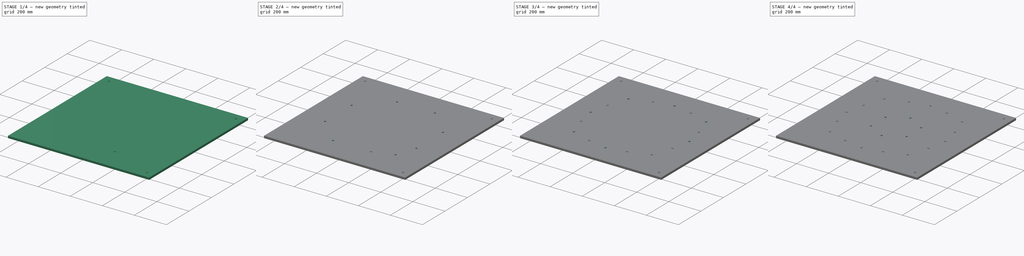
[diagram: build sequence overview — one tinted view per stage of 4, left to right]
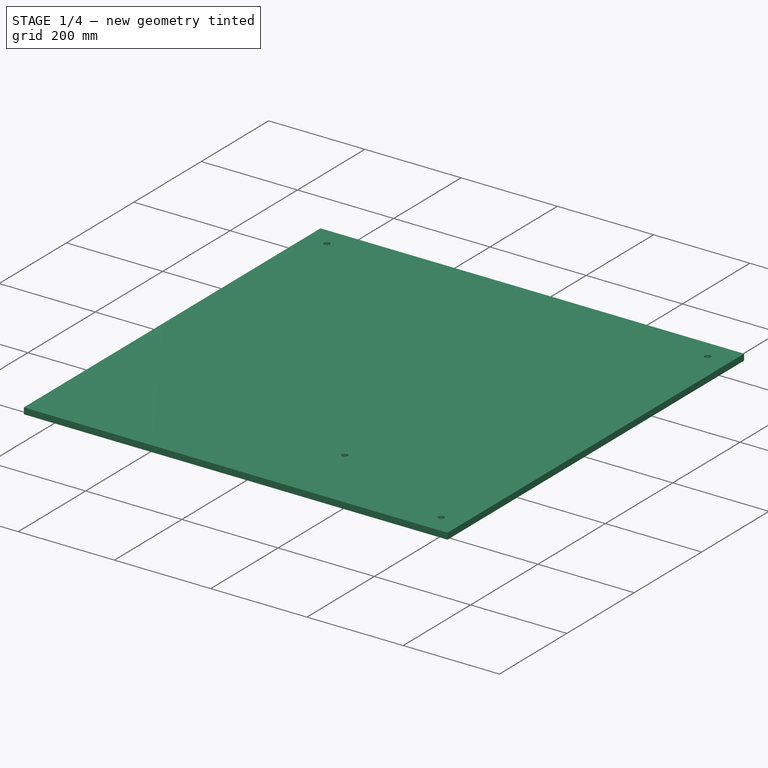
[diagram: stage 1 of 4 — iso view after this stage's code; geometry added in this stage tinted green]
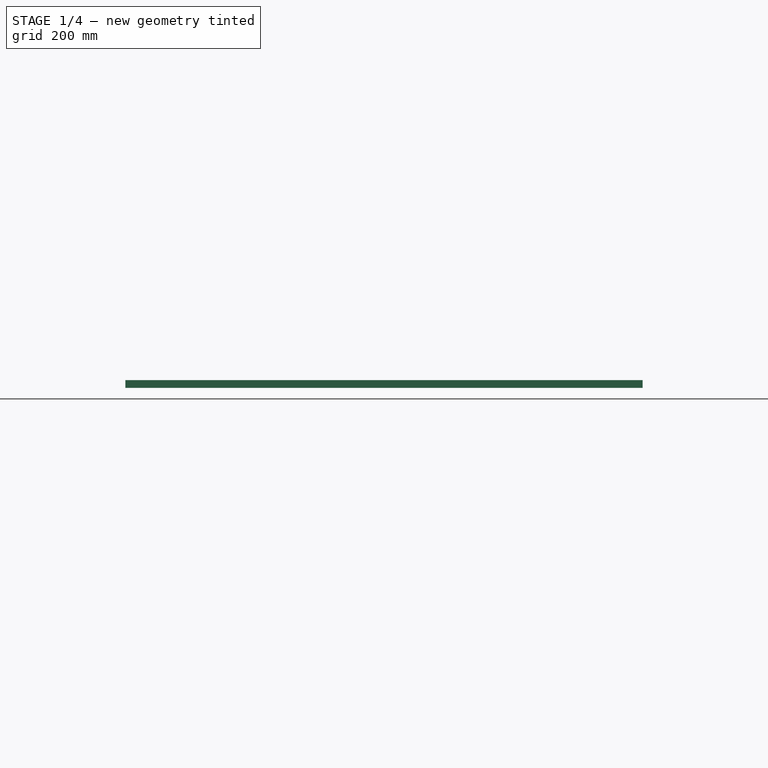
[diagram: stage 1 of 4 — front view after this stage's code; geometry added in this stage tinted green]
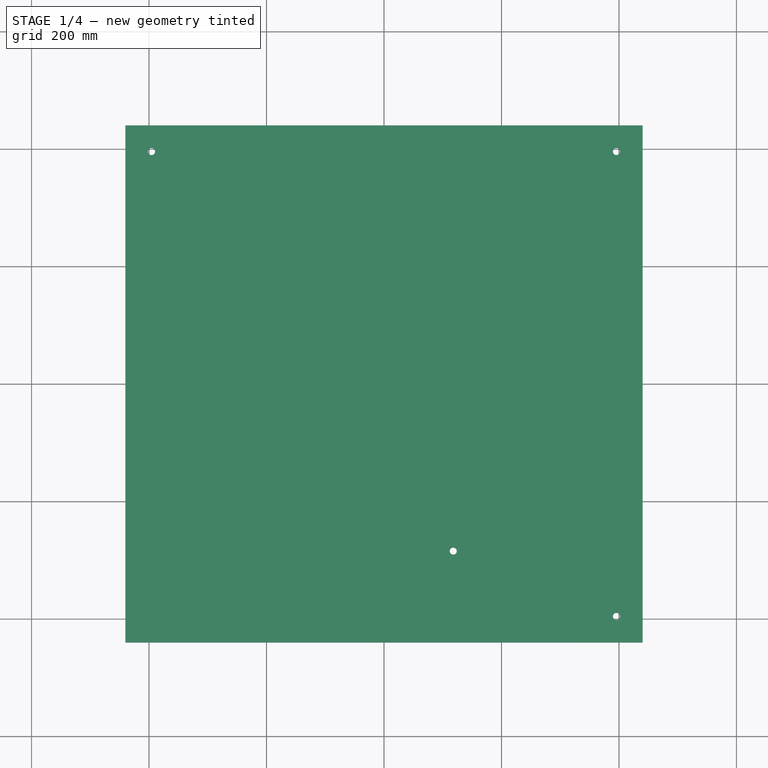
[diagram: stage 1 of 4 — top view after this stage's code; geometry added in this stage tinted green]
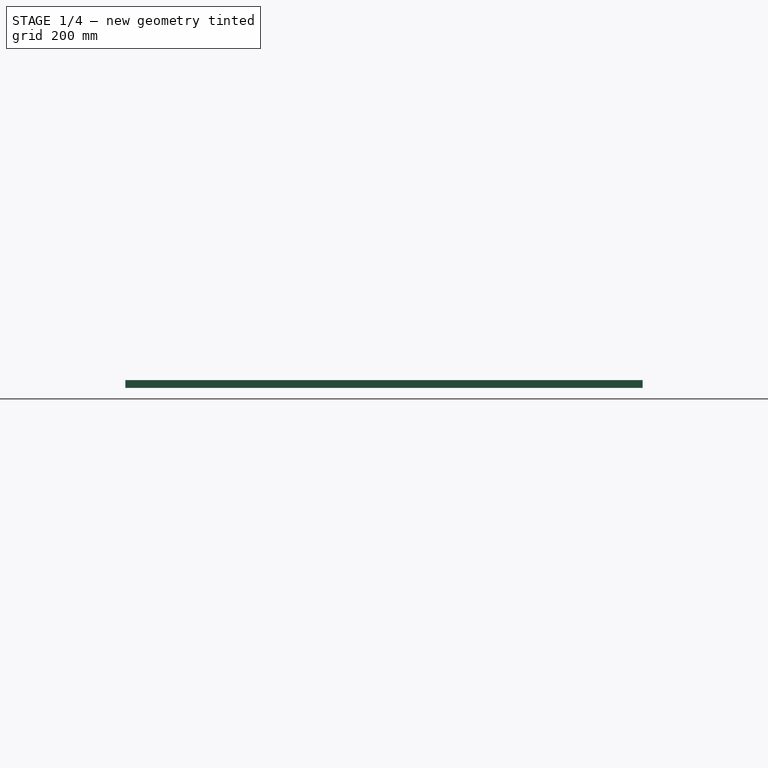
[diagram: stage 1 of 4 — right view after this stage's code; geometry added in this stage tinted green]
FCSTD DOCUMENT  (FreeCAD 0.21R33771 (Git))
Label: Stator_Mold_BoltShaftPattern_Circular
License: All rights reserved
LicenseURL: http://en.wikipedia.org/wiki/All_rights_reserved
objects: Sketcher::SketchObject×4, PartDesign::PolarPattern×4, PartDesign::Pocket×4, Spreadsheet::Sheet×1, PartDesign::Plane×1, PartDesign::Mirrored×1, PartDesign::SubShapeBinder×1, PartDesign::FeatureBase×1, PartDesign::MultiTransform×1, PartDesign::Body×1
note: 22 computed .brp shape members not serialized (recipe doc carries the construction recipe); baked Part::Feature solids carry a one-line shape summary decoded from their .brp
EXTERNAL_REF file=../../../Master_of_Puppets.FCStd obj=Alternator
EXTERNAL_REF file=../../../Master_of_Puppets.FCStd obj=Spreadsheet
EXTERNAL_REF file=Stator_Mold_Base.FCStd obj=PocketBody

FEATURE [Spreadsheet::Sheet] Spreadsheet
  cells = A1='Inputs; A2='StatorThickness; B2='StatorMoldBoltDiameter; C2='IslandInnerRadius; A3(StatorThickness)==Master_of_Puppets#Spreadsheet.StatorThickness; B3(StatorMoldBoltDiameter)==Master_of_Puppets#Alternator.StatorMoldBoltDiameter; C3(IslandInnerRadius)==Master_of_Puppets#Alternator.IslandInnerRadius; A4='EarSize; B4='EarAngle; C4='LengthMiddleHoles; A5(EarSize)==Master_of_Puppets#Alternator.EarSize; B5(EarAngle)==Master_of_Puppets#Alternator.EarAngle; C5(LengthMiddleHoles)==Master_of_Puppets#Alternator.LengthMiddleHoles; A6='NumberOfStatorHoles; B6='LargeHoleAngle; C6='StatorMoldIslandNumberOfBolts; A7(NumberOfStatorHoles)==Master_of_Puppets#Alternator.NumberOfStatorHoles; B7(LargeHoleAngle)==Master_of_Puppets#Alternator.LargeHoleAngle; C7(StatorMoldIslandNumberOfBolts)==Master_of_Puppets#Alternator.StatorMoldIslandNumberOfBolts; A8='StatorMoldHolesSketchAngle; B8='LargeInnerPolarPatternOccurrences; C8='LargeInnerPolarPatternOverallAngle; A9(StatorMoldHolesSketchAngle)==Master_of_Puppets#Alternator.StatorMoldHolesSketchAngle; B9(LargeInnerPolarPatternOccurrences)==Master_of_Puppets#Alternator.LargeInnerPolarPatternOccurrences; C9(LargeInnerPolarPatternOverallAngle)==Master_of_Puppets#Alternator.LargeInnerPolarPatternOverallAngle; A10='Calculated; A11='LargeHoleCircumradius; B11='StatorMoldBoltRadius; A12(LargeHoleCircumradius)==LengthMiddleHoles + EarSize; B12(StatorMoldBoltRadius)==StatorMoldBoltDiameter / 2
FEATURE [PartDesign::Plane] DatumPlane001  label="DatumPlane"
  AttachmentOffset = pos=(0,0,13) rot=(0,0,1;0rad)
  Length = 60
  MapMode = 5
  Placement = pos=(0,0,13) rot=(0,0,1;0rad)
  ResizeMode = 0
  Support = -> [XY_Plane]
  Width = 60
  expr: .AttachmentOffset.Base.z = Spreadsheet.StatorThickness
FEATURE [Sketcher::SketchObject] Sketch005  label="MiddleHolesSketch"
  AttachmentOffset = pos=(0,0,0) rot=(0,0,1;0.785398rad)
  FullyConstrained = true
  MapMode = 5
  Placement = pos=(0,0,13) rot=(0,0,1;0.785398rad)
  Support = -> [DatumPlane001]
  expr: .AttachmentOffset.Rotation.Angle = Spreadsheet.StatorMoldHolesSketchAngle
  expr: Constraints[16] = Spreadsheet.EarAngle
  expr: Constraints[20] = Spreadsheet.LargeHoleAngle
  expr: Constraints[22] = Spreadsheet.StatorMoldBoltRadius
  expr: Constraints[3] = Spreadsheet.LengthMiddleHoles
  expr: Constraints[6] = Spreadsheet.EarSize
  sketch-geometry (11):
    g0: Circle CenterX=0 CenterY=0 CenterZ=0 NormalX=0 NormalY=0 NormalZ=1 AngleXU=0 Radius=308
    g1: LineSegment StartX=0 StartY=0 StartZ=0 EndX=0 EndY=-308 EndZ=0
    g2: Circle CenterX=0 CenterY=-308 CenterZ=0 NormalX=0 NormalY=0 NormalZ=1 AngleXU=0 Radius=35
    g3: LineSegment StartX=16.2046 StartY=-339.023 StartZ=0 EndX=142.601 EndY=-273 EndZ=0
    g4: LineSegment StartX=-16.2046 StartY=-339.023 StartZ=0 EndX=-142.601 EndY=-273 EndZ=0
    g5: LineSegment StartX=0 StartY=0 StartZ=0 EndX=-217.789 EndY=-217.789 EndZ=0
    g6: LineSegment StartX=0 StartY=0 StartZ=0 EndX=217.789 EndY=-217.789 EndZ=0
    g7: ArcOfCircle CenterX=0 CenterY=0 CenterZ=0 NormalX=0 NormalY=0 NormalZ=1 AngleXU=0 Radius=308 StartAngle=3.92699 EndAngle=4.23102
    g8: ArcOfCircle CenterX=0 CenterY=0 CenterZ=0 NormalX=0 NormalY=0 NormalZ=1 AngleXU=0 Radius=308 StartAngle=5.19375 EndAngle=5.49779
    g9: LineSegment StartX=0 StartY=0 StartZ=0 EndX=-117.866 EndY=-284.555 EndZ=0
    g10: Circle CenterX=-117.866 CenterY=-284.555 CenterZ=0 NormalX=0 NormalY=0 NormalZ=1 AngleXU=0 Radius=6
  constraints (26):
    c: Coincident(g0,g-1)
    c: Coincident(g1,g-1)
    c: Vertical(g1)
    c: Radius(g0) = 308
    c: Coincident(g2,g1)
    c: Tangent(g3,g0)
    c: Radius(g2) = 35
    c: Symmetric(g6,g5,g1)
    c: Coincident(g7,g5)
    c: Coincident(g7,g4)
    c: Coincident(g8,g6)
    c: Coincident(g8,g3)
    c: Coincident(g6,g5)
    c: Coincident(g5,g7)
    c: Coincident(g5,g-1)
    c: Coincident(g8,g5)
    c: Angle(g5,g6) = 1.5708
    c: Tangent(g3,g2) = -1.5708
    c: Tangent(g4,g0) = 1.5708
    c: Coincident(g9,g-1)
    c: Angle(g5,g9) = 0.392699
    c: Coincident(g10,g9)
    c: Radius(g10) = 6
    c: Tangent(g4,g2) = 1.5708
    c: PointOnObject(g1,g0)
    c: PointOnObject(g10,g0)
FEATURE [PartDesign::Mirrored] Mirrored  label="MiddleHolesMirrored"
  MirrorPlane = -> Sketch005 [V_Axis]
FEATURE [PartDesign::PolarPattern] PolarPattern002  label="MiddleHolesPolarPattern"
  Angle = 360
  Axis = -> Sketch005 [N_Axis]
  Occurrences = 4
  expr: Occurrences = Spreadsheet.NumberOfStatorHoles
FEATURE [Sketcher::SketchObject] Sketch006  label="LargeHoleOuterSketch"
  AttachmentOffset = pos=(0,0,0) rot=(0,0,1;0.785398rad)
  FullyConstrained = true
  MapMode = 5
  Placement = pos=(0,0,13) rot=(0,0,1;0.785398rad)
  Support = -> [DatumPlane001]
  expr: .AttachmentOffset.Rotation.Angle = Spreadsheet.StatorMoldHolesSketchAngle
  expr: Constraints[1] = Spreadsheet.LargeHoleCircumradius
  expr: Constraints[5] = Spreadsheet.StatorMoldBoltRadius
  sketch-geometry (3):
    g0: Circle CenterX=0 CenterY=0 CenterZ=0 NormalX=0 NormalY=0 NormalZ=1 AngleXU=0 Radius=343
    g1: LineSegment StartX=0 StartY=0 StartZ=0 EndX=0 EndY=-343 EndZ=0
    g2: Circle CenterX=0 CenterY=-343 CenterZ=0 NormalX=0 NormalY=0 NormalZ=1 AngleXU=0 Radius=6
  constraints (7):
    c: Coincident(g0,g-1)
    c: Radius(g0) = 343
    c: PointOnObject(g1,g0)
    c: Vertical(g1)
    c: Coincident(g2,g1)
    c: Radius(g2) = 6
    c: Coincident(g1,g0)
FEATURE [Sketcher::SketchObject] Sketch007  label="LargeHoleInnerSketch"
  FullyConstrained = true
  MapMode = 5
  Placement = pos=(0,0,13) rot=(0,0,1;0rad)
  Support = -> [DatumPlane001]
  expr: Constraints[1] = Spreadsheet.LengthMiddleHoles
  expr: Constraints[3] = Spreadsheet.StatorMoldBoltRadius
  sketch-geometry (2):
    g0: Circle CenterX=0 CenterY=0 CenterZ=0 NormalX=0 NormalY=0 NormalZ=1 AngleXU=0 Radius=308
    g1: Circle CenterX=0 CenterY=308 CenterZ=0 NormalX=0 NormalY=0 NormalZ=1 AngleXU=0 Radius=6
  constraints (5):
    c: Coincident(g0,g-1)
    c: Radius(g0) = 308
    c: PointOnObject(g1,g0)
    c: Radius(g1) = 6
    c: PointOnObject(g1,g-2)
FEATURE [PartDesign::SubShapeBinder] Binder
  BindCopyOnChange = 0
  BindMode = 0
  ClaimChildren = true
  Context = -> Body [Binder.]
  Fuse = false
  MakeFace = true
  OffsetFill = false
  OffsetIntersection = false
  OffsetJoinType = 0
  OffsetOpenResult = false
  PartialLoad = false
  Refine = true
  Relative = true
  Support = -> [<external Stator_Mold_Base.FCStd>#PocketBody]
  _Version = 2
FEATURE [PartDesign::FeatureBase] BaseFeature
  BaseFeature = -> Binder
FEATURE [PartDesign::Pocket] Pocket001  label="MiddleHolesPocket"
  BaseFeature = -> BaseFeature
  Direction = (0,0,-1)
  Length = 5
  Length2 = 100
  Profile = -> Sketch005
  Type = 1
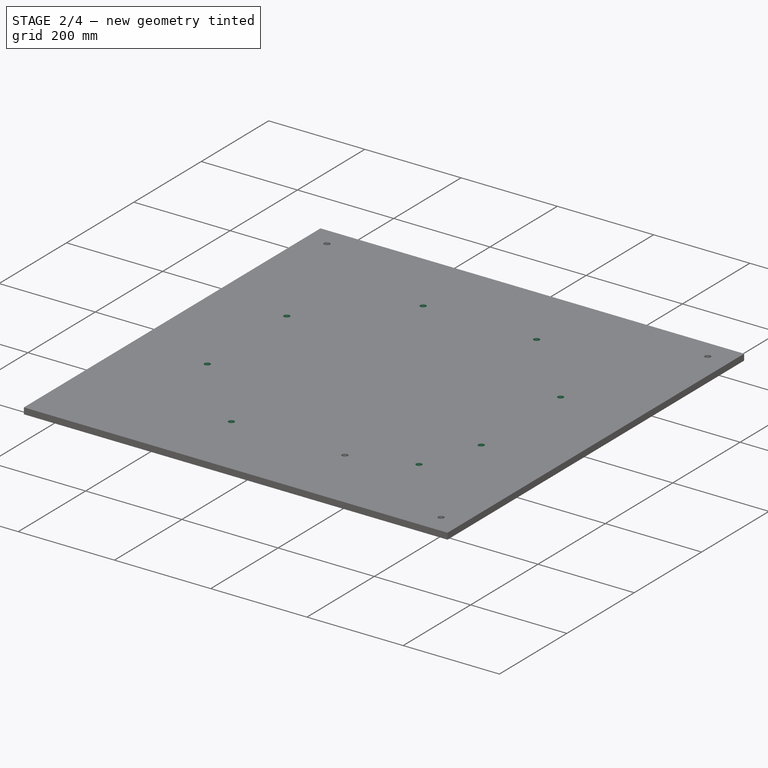
[diagram: stage 2 of 4 — iso view after this stage's code; geometry added in this stage tinted green]
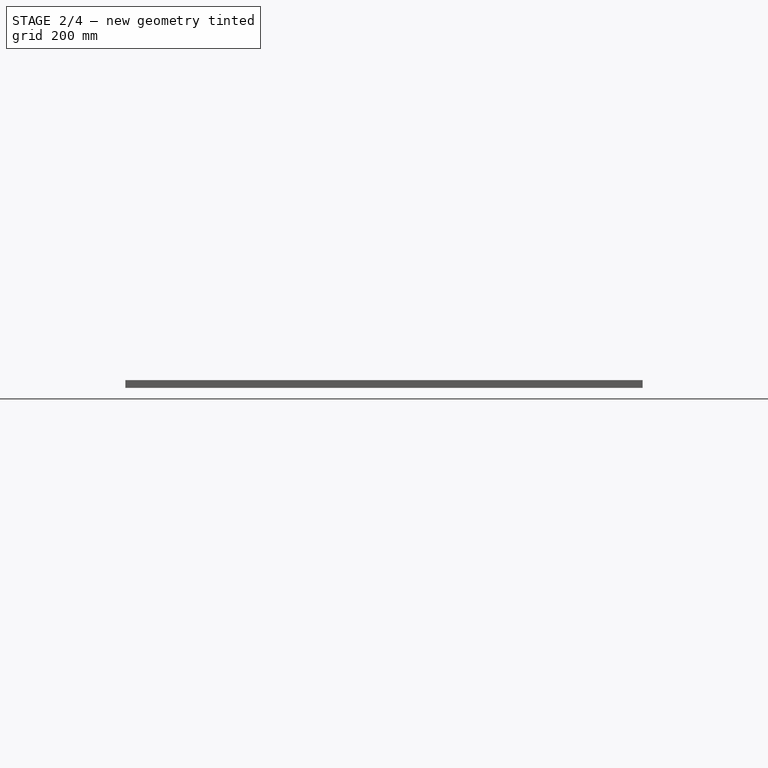
[diagram: stage 2 of 4 — front view after this stage's code; geometry added in this stage tinted green]
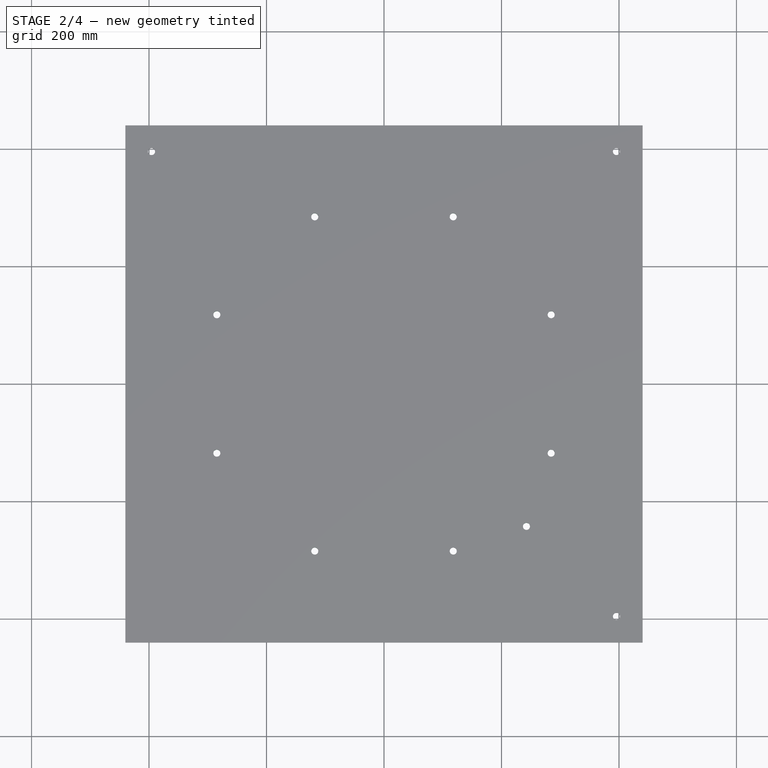
[diagram: stage 2 of 4 — top view after this stage's code; geometry added in this stage tinted green]
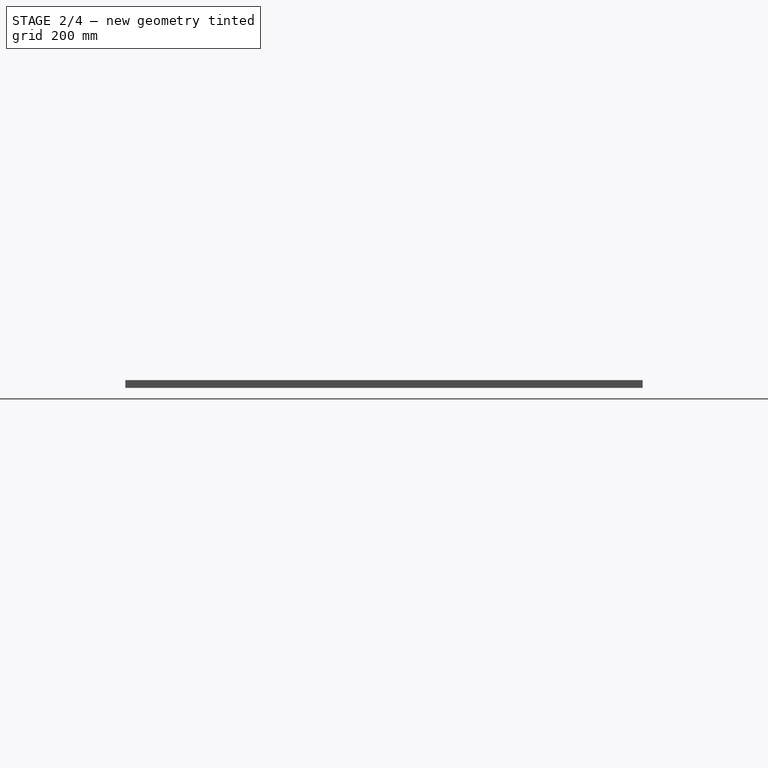
[diagram: stage 2 of 4 — right view after this stage's code; geometry added in this stage tinted green]
FEATURE [PartDesign::MultiTransform] MultiTransform  label="MiddleHolesMultiTransform"
  BaseFeature = -> Pocket001
  Originals = -> [Pocket001]
  Transformations = -> [Mirrored,PolarPattern002]
FEATURE [PartDesign::Pocket] Pocket002  label="LargeHoleOuterPocket"
  BaseFeature = -> MultiTransform
  Direction = (0,0,-1)
  Length = 5
  Length2 = 100
  Profile = -> Sketch006
  Type = 1
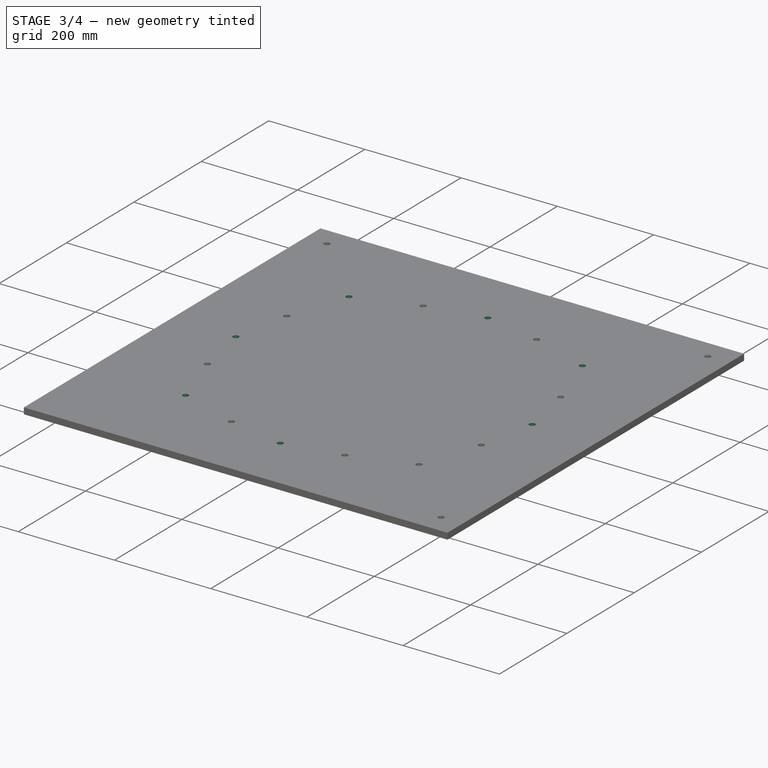
[diagram: stage 3 of 4 — iso view after this stage's code; geometry added in this stage tinted green]
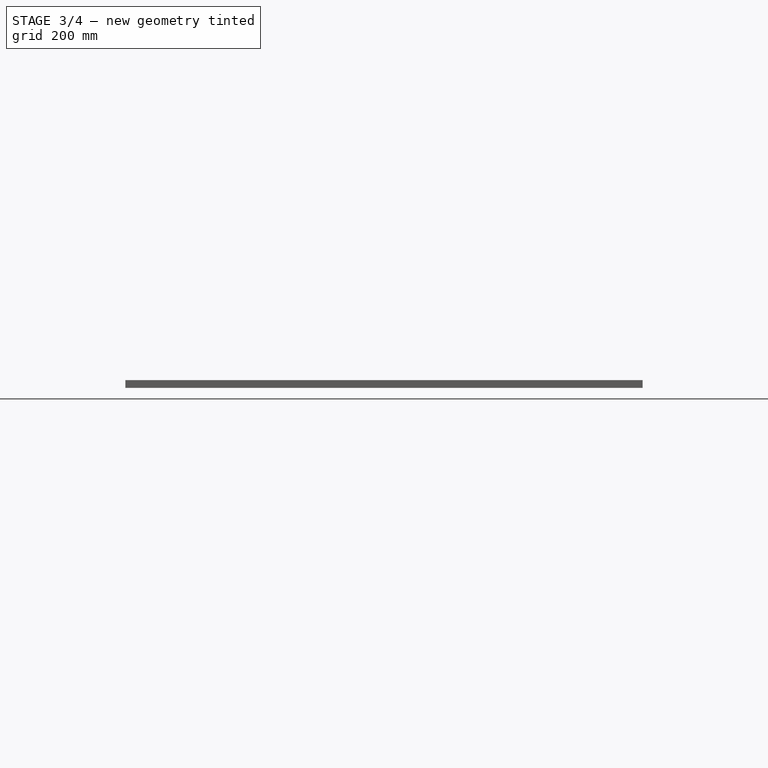
[diagram: stage 3 of 4 — front view after this stage's code; geometry added in this stage tinted green]
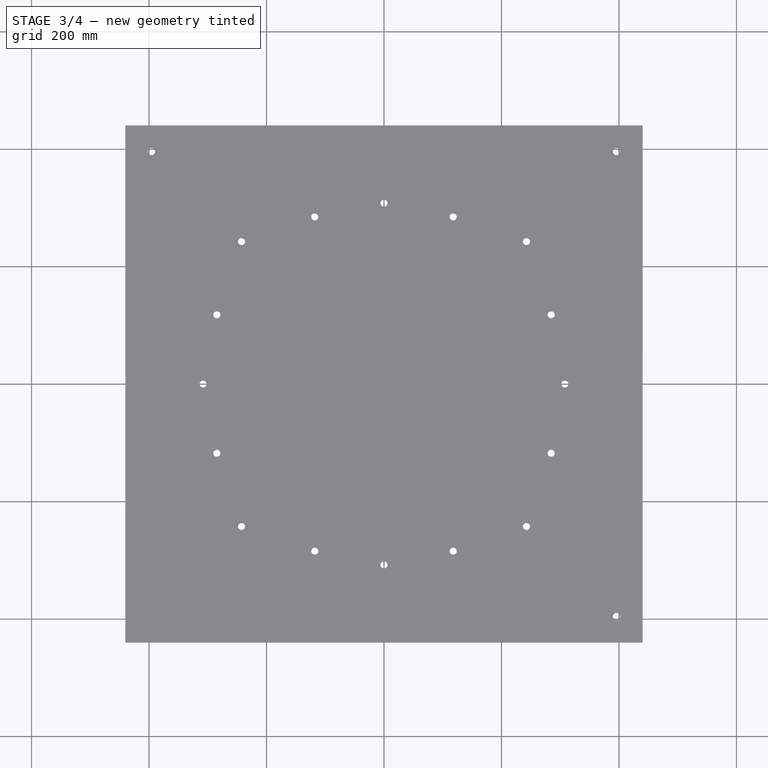
[diagram: stage 3 of 4 — top view after this stage's code; geometry added in this stage tinted green]
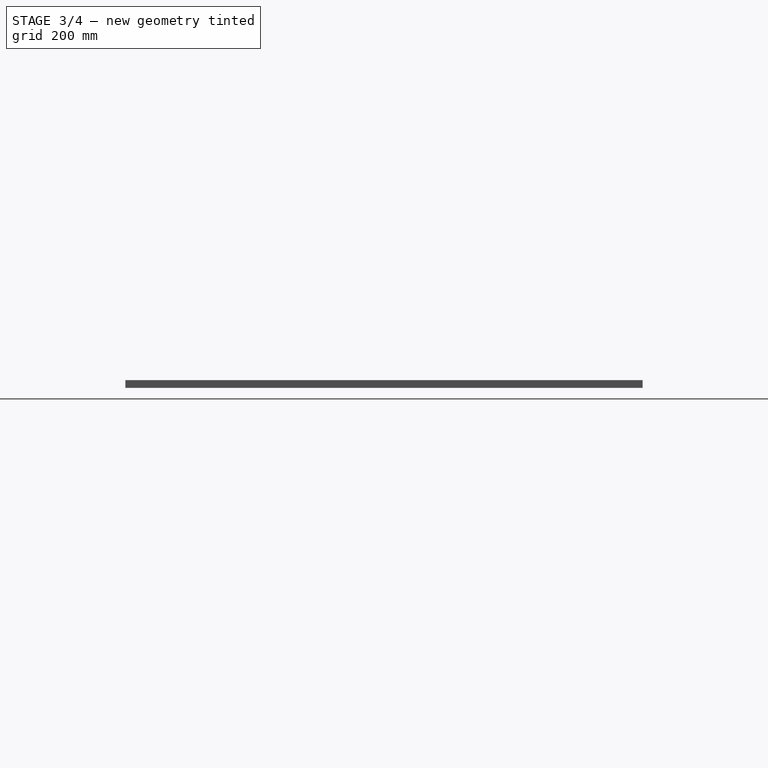
[diagram: stage 3 of 4 — right view after this stage's code; geometry added in this stage tinted green]
FEATURE [PartDesign::PolarPattern] PolarPattern003  label="LargeHoleOuterPolarPattern"
  Angle = 360
  Axis = -> Sketch006 [N_Axis]
  BaseFeature = -> Pocket002
  Occurrences = 4
  Originals = -> [Pocket002]
  expr: Occurrences = Spreadsheet.NumberOfStatorHoles
FEATURE [PartDesign::Pocket] Pocket003  label="LargeHoleInnerPocket"
  BaseFeature = -> PolarPattern003
  Direction = (0,0,-1)
  Length = 5
  Length2 = 100
  Profile = -> Sketch007
  Type = 1
FEATURE [PartDesign::PolarPattern] PolarPattern004  label="LargeHoleInnerPolarPattern"
  Angle = 360
  Axis = -> Z_Axis
  BaseFeature = -> Pocket003
  Occurrences = 4
  Originals = -> [Pocket003]
  expr: Angle = Spreadsheet.LargeInnerPolarPatternOverallAngle
  expr: Occurrences = Spreadsheet.LargeInnerPolarPatternOccurrences
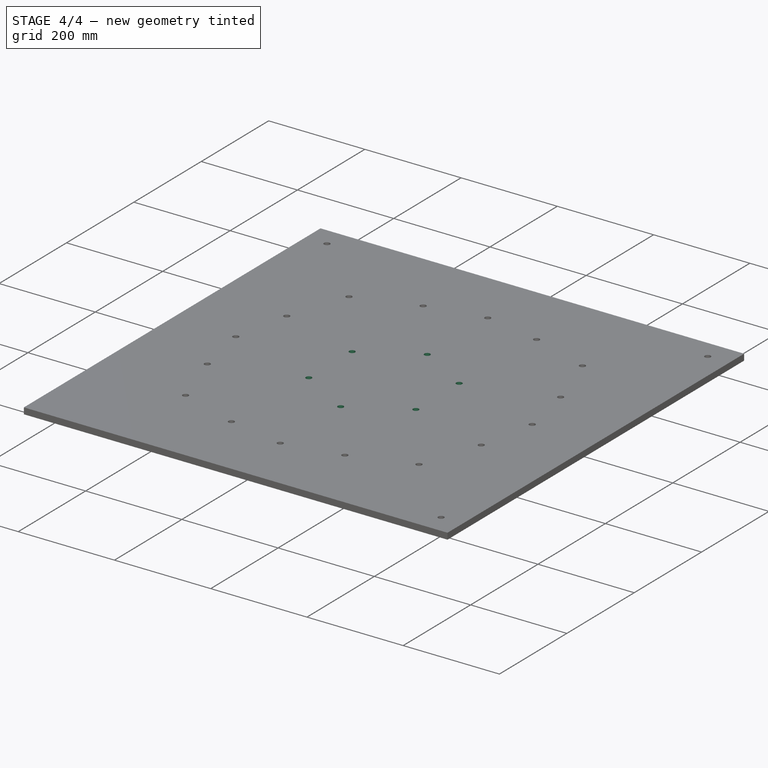
[diagram: stage 4 of 4 — iso view after this stage's code; geometry added in this stage tinted green]
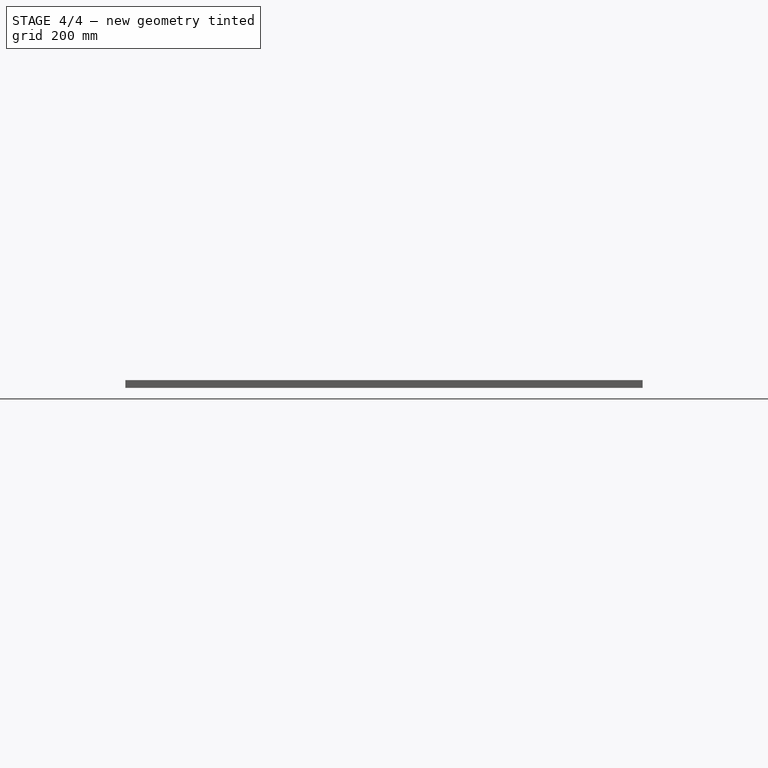
[diagram: stage 4 of 4 — front view after this stage's code; geometry added in this stage tinted green]
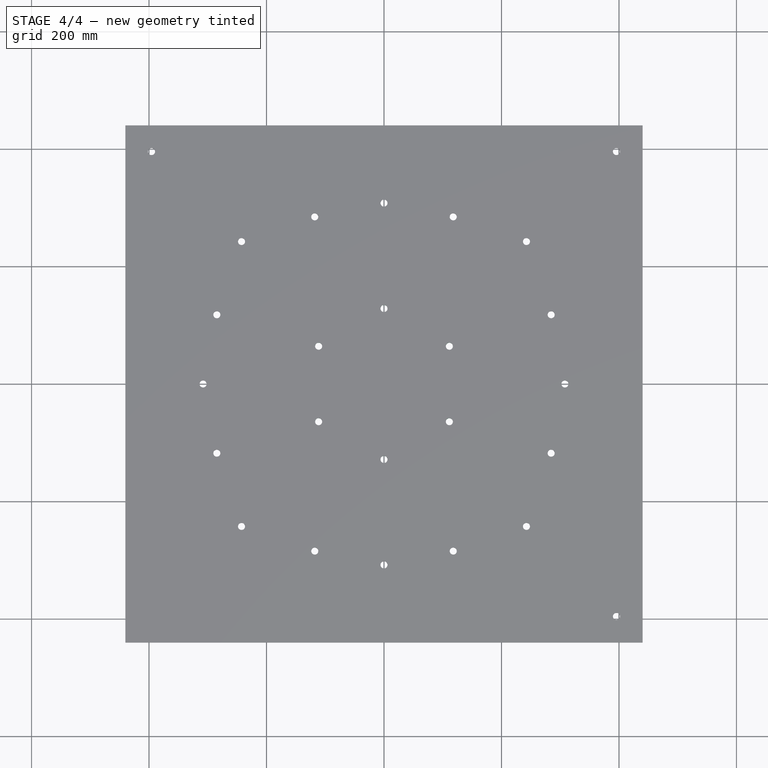
[diagram: stage 4 of 4 — top view after this stage's code; geometry added in this stage tinted green]
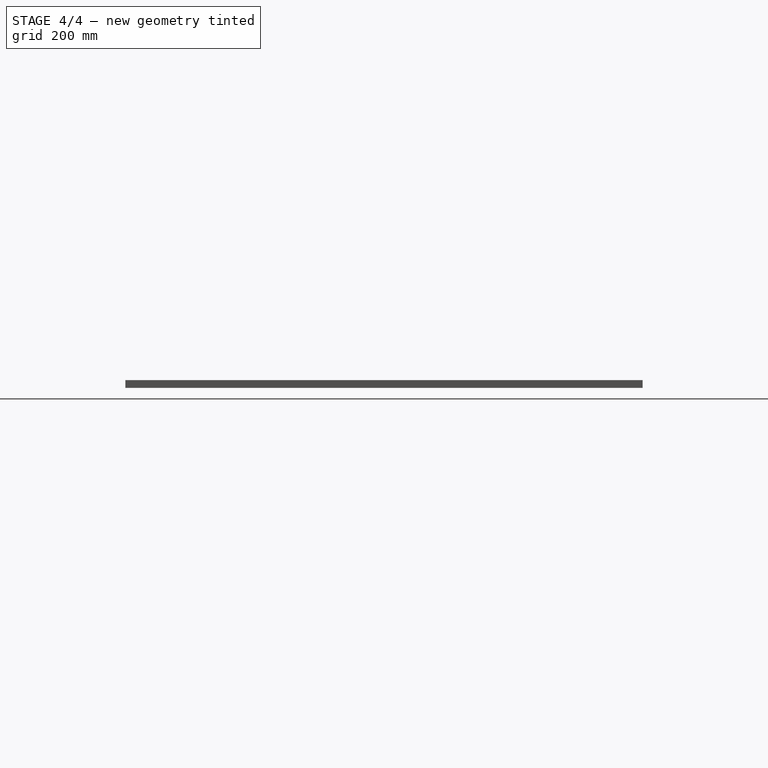
[diagram: stage 4 of 4 — right view after this stage's code; geometry added in this stage tinted green]
FEATURE [Sketcher::SketchObject] Sketch  label="InnerBoltHolesSketch"
  FullyConstrained = true
  MapMode = 5
  Placement = pos=(0,0,13) rot=(0,0,1;0rad)
  Support = -> [DatumPlane001]
  expr: Constraints[2] = Spreadsheet.StatorMoldBoltRadius
  expr: Constraints[3] = Spreadsheet.IslandInnerRadius
  sketch-geometry (2):
    g0: Circle CenterX=0 CenterY=0 CenterZ=0 NormalX=0 NormalY=0 NormalZ=1 AngleXU=0 Radius=128.499
    g1: Circle CenterX=0 CenterY=128.499 CenterZ=0 NormalX=0 NormalY=0 NormalZ=1 AngleXU=0 Radius=6
  constraints (5):
    c: Coincident(g0,g-1)
    c: PointOnObject(g1,g0)
    c: Radius(g1) = 6
    c: Radius(g0) = 128.499
    c: PointOnObject(g1,g-2)
FEATURE [PartDesign::Pocket] Pocket  label="InnerBoltHolesPocket"
  BaseFeature = -> PolarPattern004
  Direction = (0,0,-1)
  Length = 5
  Length2 = 100
  Profile = -> Sketch
  Type = 1
FEATURE [PartDesign::PolarPattern] PolarPattern
  Angle = 360
  Axis = -> Z_Axis
  BaseFeature = -> Pocket
  Occurrences = 6
  Originals = -> [Pocket]
  expr: Occurrences = Spreadsheet.StatorMoldIslandNumberOfBolts
FEATURE [PartDesign::Body] Body  label="Stator_Mold_BoltShaftPattern"
  BaseFeature = -> Binder
  Group = -> [BaseFeature,DatumPlane001,Sketch005,Pocket001,MultiTransform,Mirrored,PolarPattern002,Sketch006,Pocket002,PolarPattern003,Sketch007,Pocket003,PolarPattern004,Binder,Sketch,Pocket,PolarPattern]
  Origin = -> Origin
  Tip = -> PolarPattern
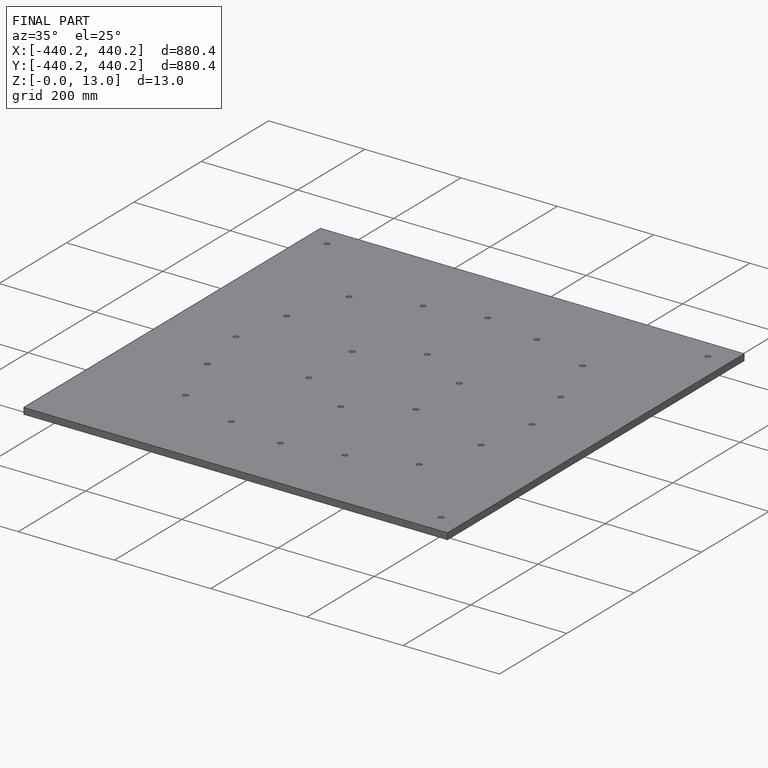
[diagram: finished part — iso view with bounding-box wireframe]
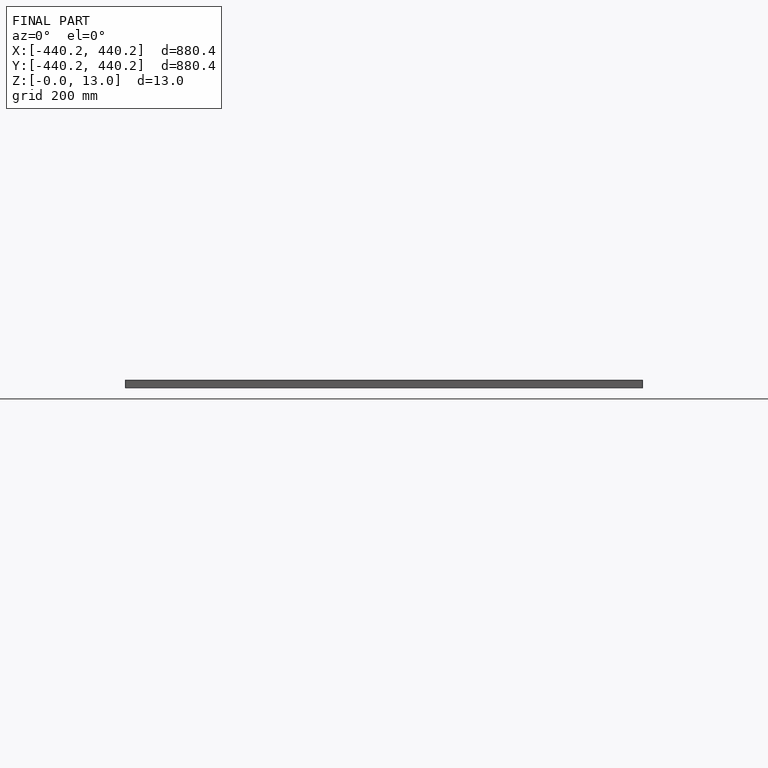
[diagram: finished part — front view with bounding-box wireframe]
